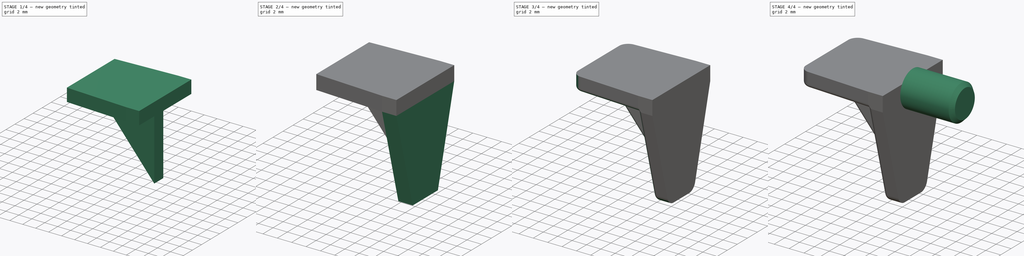
[diagram: build sequence overview — one tinted view per stage of 4, left to right]
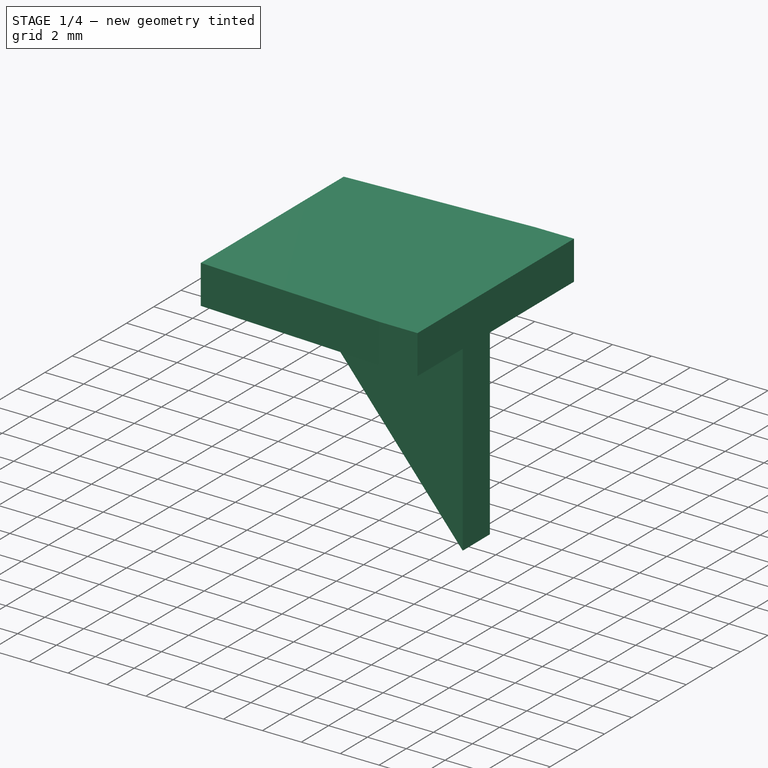
[diagram: stage 1 of 4 — iso view after this stage's code; geometry added in this stage tinted green]
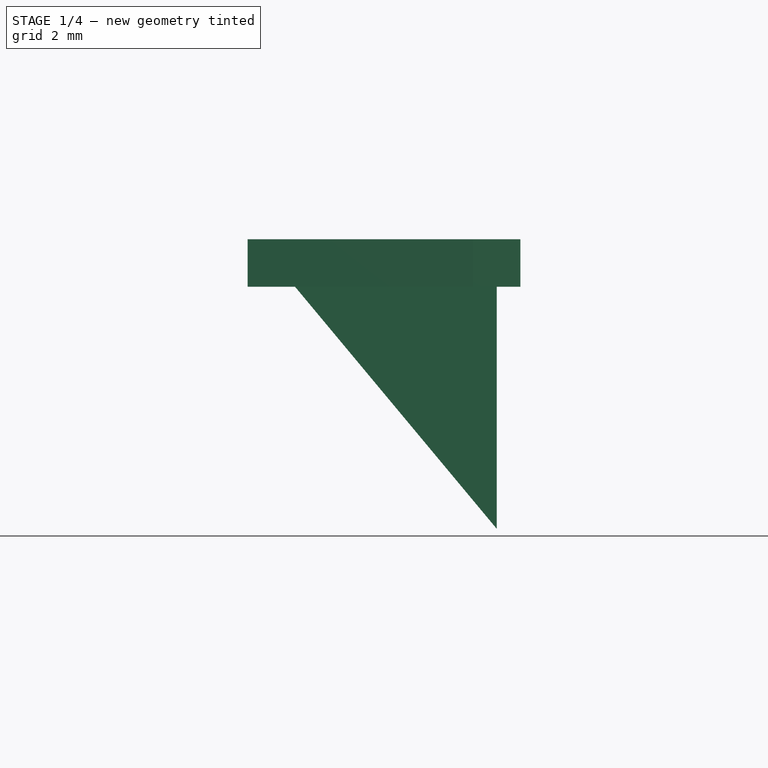
[diagram: stage 1 of 4 — front view after this stage's code; geometry added in this stage tinted green]
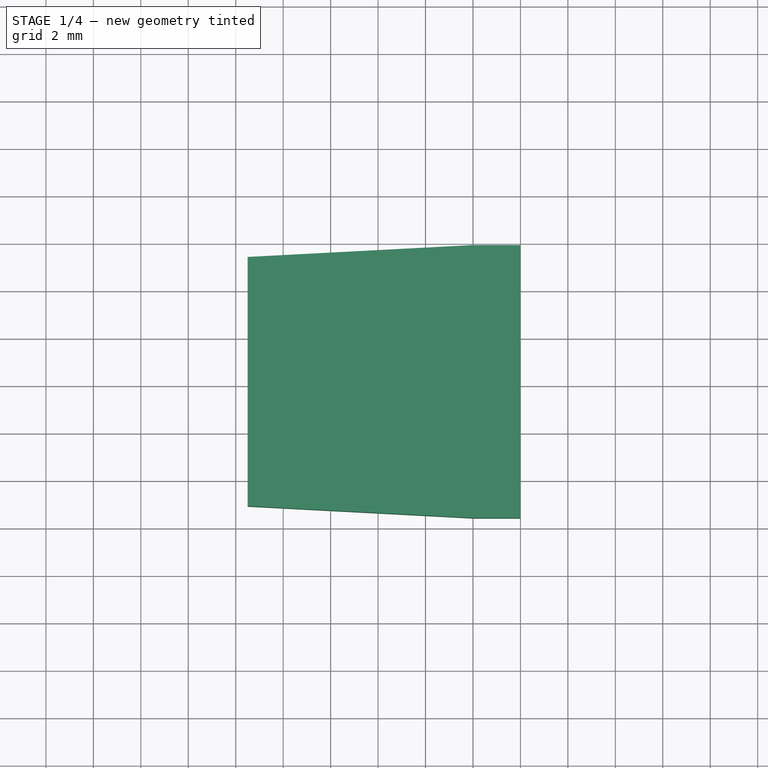
[diagram: stage 1 of 4 — top view after this stage's code; geometry added in this stage tinted green]
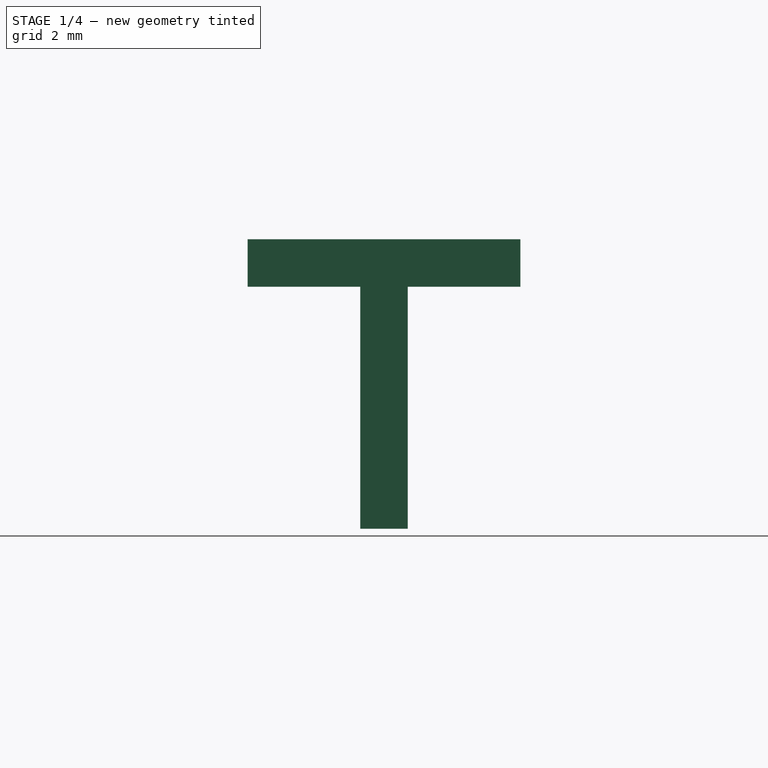
[diagram: stage 1 of 4 — right view after this stage's code; geometry added in this stage tinted green]
FCSTD DOCUMENT  (FreeCAD 0.16R6712 (Git))
Label: ClosetPin
License: All rights reserved
LicenseURL: http://en.wikipedia.org/wiki/All_rights_reserved
objects: Sketcher::SketchObject×4, PartDesign::Pad×4, PartDesign::Fillet×3, Part::MultiFuse×1, PartDesign::Chamfer×1
note: 17 computed .brp shape members not serialized (recipe doc carries the construction recipe); baked Part::Feature solids carry a one-line shape summary decoded from their .brp

FEATURE [Sketcher::SketchObject] Sketch
  sketch-geometry (6):
    g0: LineSegment StartX=0 StartY=5.75 StartZ=0 EndX=-2 EndY=5.75 EndZ=0
    g1: LineSegment StartX=-2 StartY=5.75 StartZ=0 EndX=-11.5 EndY=5.25 EndZ=0
    g2: LineSegment StartX=-11.5 StartY=5.25 StartZ=0 EndX=-11.5 EndY=-5.25 EndZ=0
    g3: LineSegment StartX=-11.5 StartY=-5.25 StartZ=0 EndX=-2 EndY=-5.75 EndZ=0
    g4: LineSegment StartX=-2 StartY=-5.75 StartZ=0 EndX=0 EndY=-5.75 EndZ=0
    g5: LineSegment StartX=0 StartY=-5.75 StartZ=0 EndX=0 EndY=5.75 EndZ=0
  constraints (18):
    c: PointOnObject(g0,g-2)
    c: Horizontal(g0)
    c: Coincident(g0,g1)
    c: Coincident(g1,g2)
    c: Vertical(g2)
    c: Coincident(g2,g3)
    c: Coincident(g3,g4)
    c: PointOnObject(g4,g-2)
    c: Horizontal(g4)
    c: Coincident(g4,g5)
    c: Coincident(g0,g5)
    c: Symmetric(g4,g0,g-1)
    c: Symmetric(g2,g1,g-1)
    c: DistanceX(g4,g4) = 2
    c: DistanceY(g5,g5) = 11.5
    c: DistanceX(g1,g0) = 11.5
    c: DistanceY(g2,g2) = 10.5
    c: Equal(g0,g4)
FEATURE [PartDesign::Pad] Pad
  Length = 2
  Length2 = 100
  Reversed = true
  Sketch = -> Sketch
  Type = 0
FEATURE [Sketcher::SketchObject] Sketch002
  Placement = pos=(0,0,0) rot=(-1,0,0;4.71239rad)
  sketch-geometry (5):
    g0: LineSegment StartX=-10.3333 StartY=-1 StartZ=0 EndX=-1 EndY=-12.2 EndZ=0
    g1: LineSegment StartX=-1 StartY=-12.2 StartZ=0 EndX=-1 EndY=-1 EndZ=0
    g2: LineSegment StartX=-1 StartY=-1 StartZ=0 EndX=-10.3333 EndY=-1 EndZ=0
    g3: GeomPoint [constr] X=-9.5 Y=-2 Z=0
    g4: GeomPoint [constr] X=-2 Y=-11 Z=0
  constraints (13):
    c: Coincident(g0,g1)
    c: Vertical(g1)
    c: Coincident(g1,g2)
    c: Coincident(g2,g0)
    c: Horizontal(g2)
    c: PointOnObject(g3,g0)
    c: PointOnObject(g4,g0)
    c: DistanceX(g4,g0) = 1
    c: DistanceY(g3,g0) = 1
    c: DistanceY(g4,g-1) = 11
    c: DistanceX(g4,g-1) = 2
    c: DistanceX(g3,g-1) = 9.5
    c: DistanceY(g3,g-1) = 2
FEATURE [PartDesign::Pad] Pad002
  Length = 2
  Length2 = 100
  Midplane = true
  Placement = pos=(0,0,0) rot=(-1,0,0;4.71239rad)
  Sketch = -> Sketch002
  Type = 0
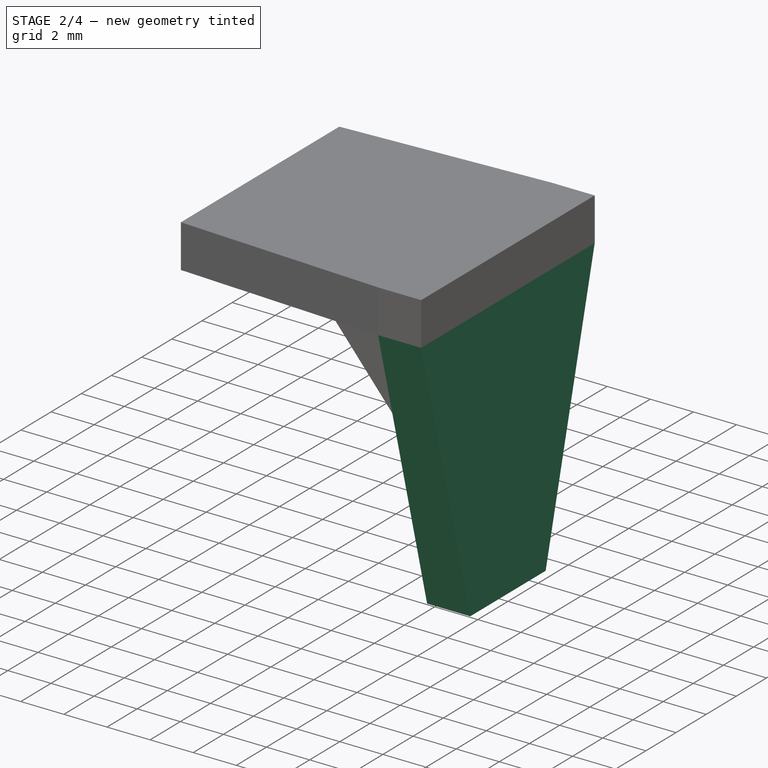
[diagram: stage 2 of 4 — iso view after this stage's code; geometry added in this stage tinted green]
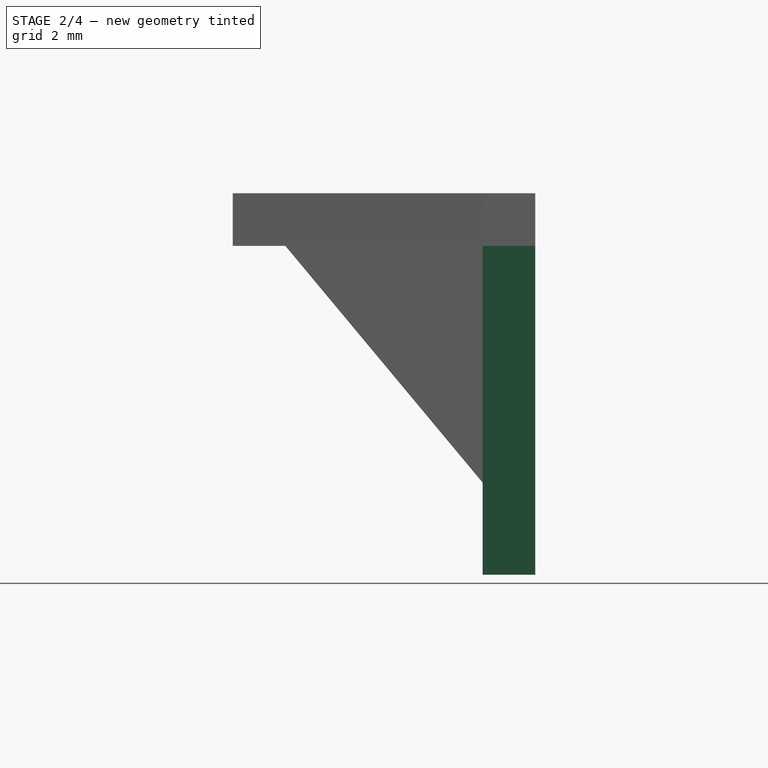
[diagram: stage 2 of 4 — front view after this stage's code; geometry added in this stage tinted green]
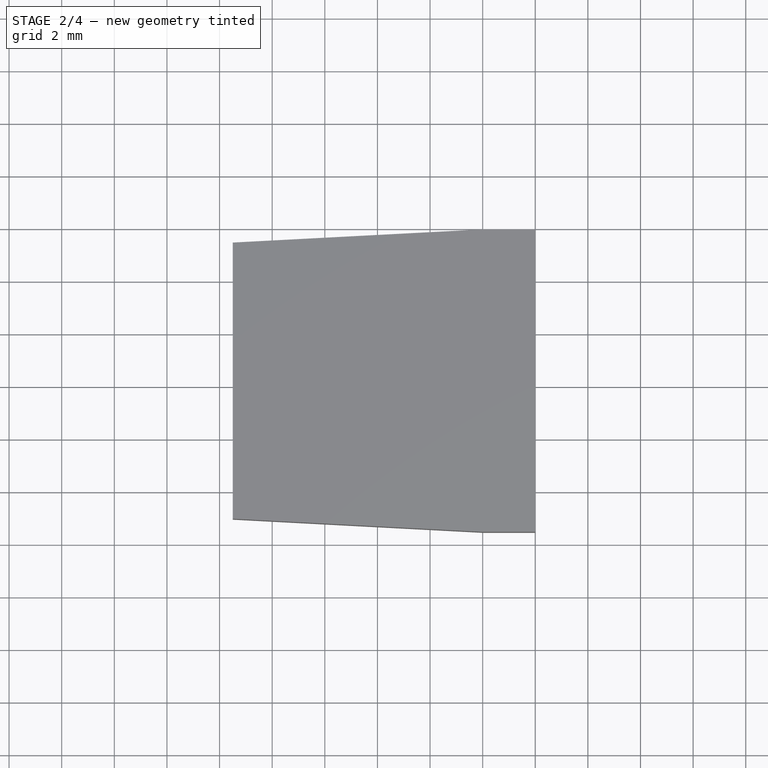
[diagram: stage 2 of 4 — top view after this stage's code; geometry added in this stage tinted green]
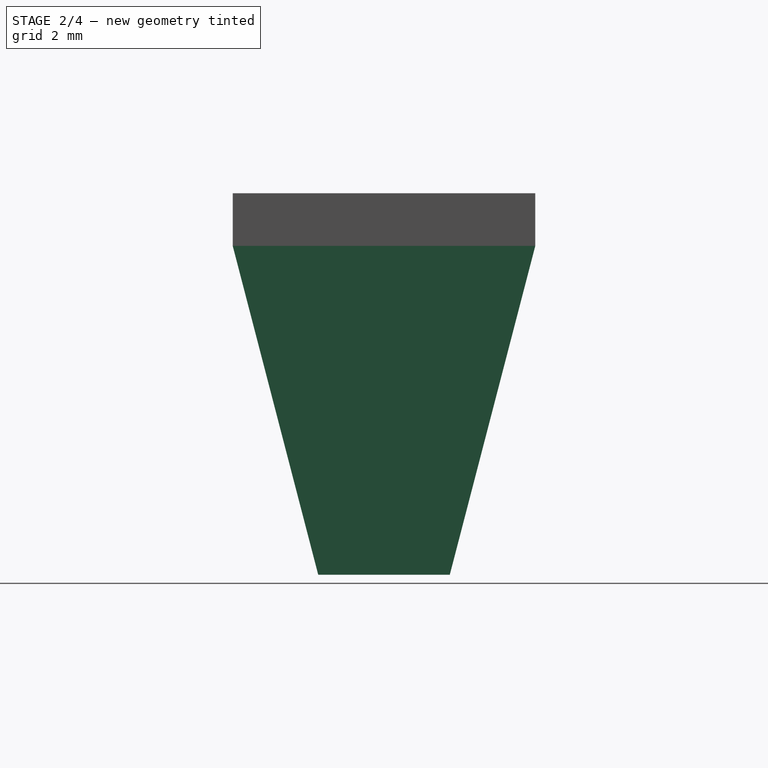
[diagram: stage 2 of 4 — right view after this stage's code; geometry added in this stage tinted green]
FEATURE [Sketcher::SketchObject] Sketch001
  ExternalGeometry = -> [Pad]
  Placement = pos=(0,0,0) rot=(0.57735,0.57735,0.57735;2.0944rad)
  Support = -> Pad [Face6]
  sketch-geometry (6):
    g0: LineSegment StartX=-5.75 StartY=0 StartZ=0 EndX=-5.75 EndY=-2 EndZ=0
    g1: LineSegment StartX=-5.75 StartY=-2 StartZ=0 EndX=-2.5 EndY=-14.5 EndZ=0
    g2: LineSegment StartX=-2.5 StartY=-14.5 StartZ=0 EndX=2.5 EndY=-14.5 EndZ=0
    g3: LineSegment StartX=2.5 StartY=-14.5 StartZ=0 EndX=5.75 EndY=-2 EndZ=0
    g4: LineSegment StartX=5.75 StartY=-2 StartZ=0 EndX=5.75 EndY=0 EndZ=0
    g5: LineSegment StartX=5.75 StartY=0 StartZ=0 EndX=-5.75 EndY=0 EndZ=0
  constraints (16):
    c: Coincident(g-3,g0)
    c: Vertical(g0)
    c: Coincident(g0,g1)
    c: Coincident(g1,g2)
    c: Horizontal(g2)
    c: Coincident(g2,g3)
    c: Coincident(g3,g4)
    c: Coincident(g4,g-3)
    c: Vertical(g4)
    c: Coincident(g4,g5)
    c: Coincident(g0,g5)
    c: Coincident(g0,g-4)
    c: Coincident(g3,g-4)
    c: DistanceX(g2,g2) = 5
    c: Symmetric(g1,g2,g-2)
    c: DistanceY(g1,g0) = 14.5
FEATURE [PartDesign::Pad] Pad001
  Length = 2
  Length2 = 100
  Reversed = true
  Sketch = -> Sketch001
  Type = 0
FEATURE [Part::MultiFuse] Fusion
  Shapes = -> [Pad001,Pad002]
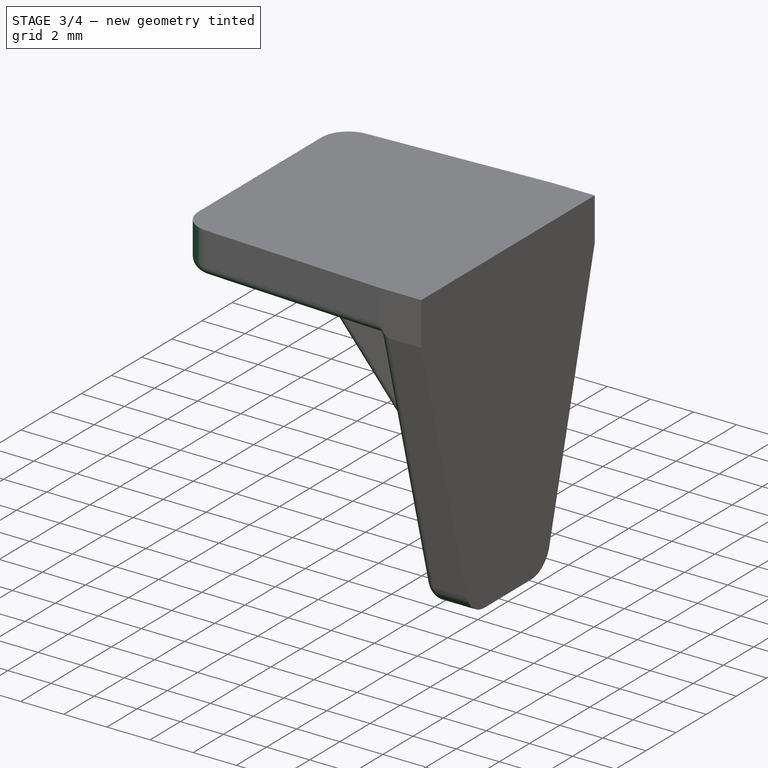
[diagram: stage 3 of 4 — iso view after this stage's code; geometry added in this stage tinted green]
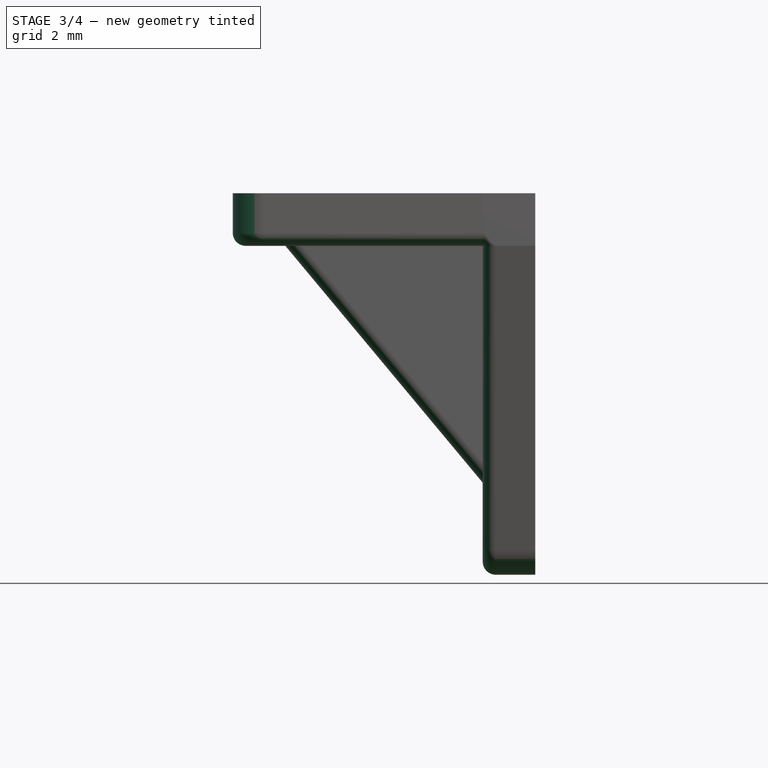
[diagram: stage 3 of 4 — front view after this stage's code; geometry added in this stage tinted green]
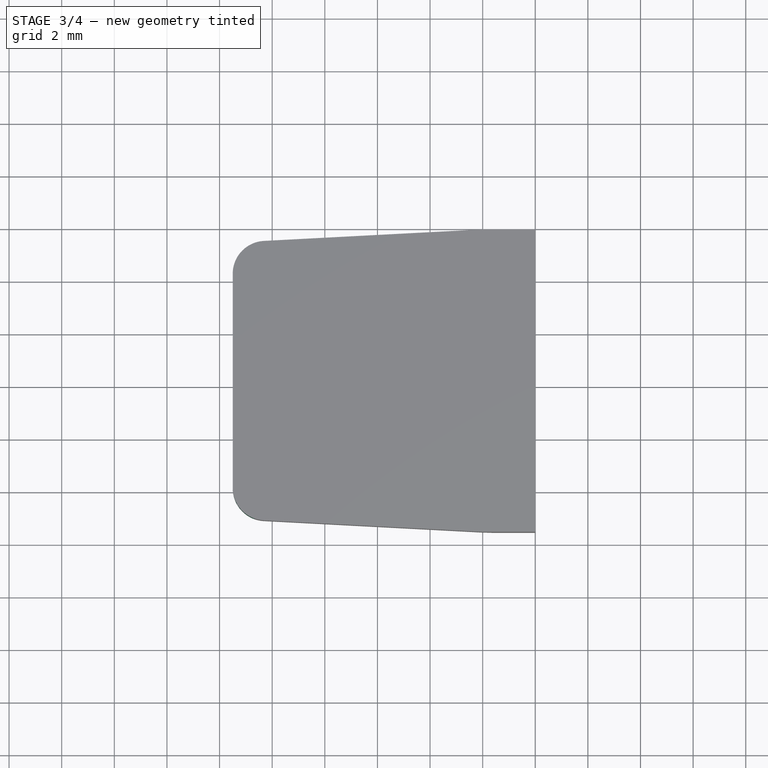
[diagram: stage 3 of 4 — top view after this stage's code; geometry added in this stage tinted green]
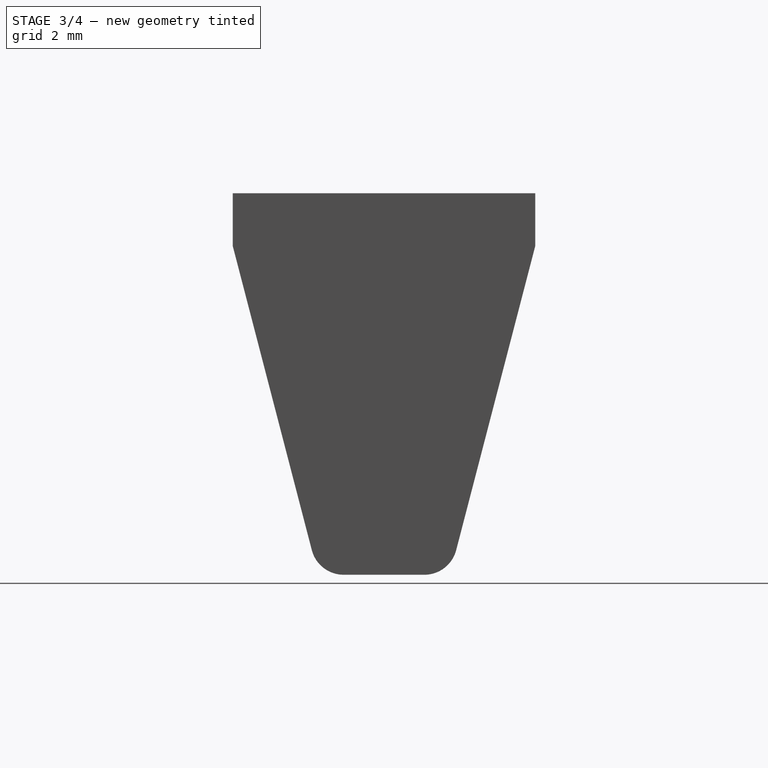
[diagram: stage 3 of 4 — right view after this stage's code; geometry added in this stage tinted green]
FEATURE [PartDesign::Fillet] Fillet
  Base = -> Fusion [Edge1,Edge2,Edge32,Edge36]
  Radius = 1.25
FEATURE [PartDesign::Fillet] Fillet001
  Base = -> Fillet [Edge34,Edge35]
  Radius = 0.5
FEATURE [PartDesign::Fillet] Fillet002
  Base = -> Fillet001 [Edge9,Edge22]
  Radius = 0.5
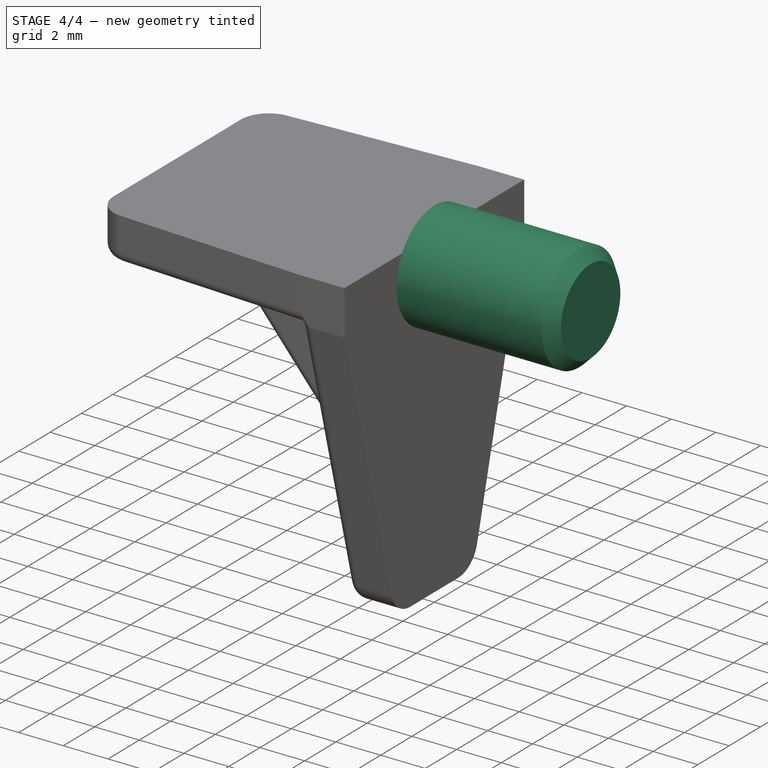
[diagram: stage 4 of 4 — iso view after this stage's code; geometry added in this stage tinted green]
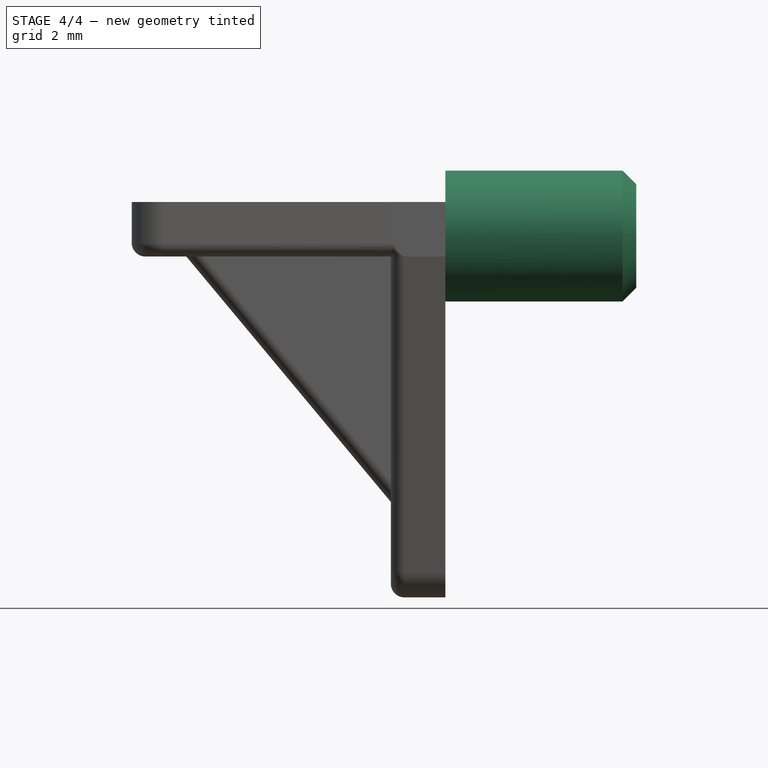
[diagram: stage 4 of 4 — front view after this stage's code; geometry added in this stage tinted green]
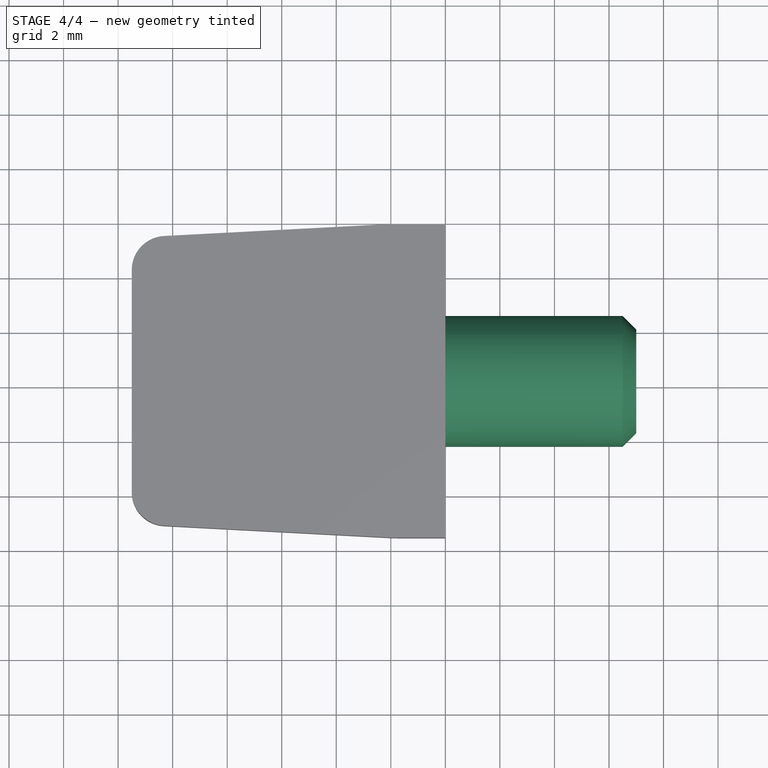
[diagram: stage 4 of 4 — top view after this stage's code; geometry added in this stage tinted green]
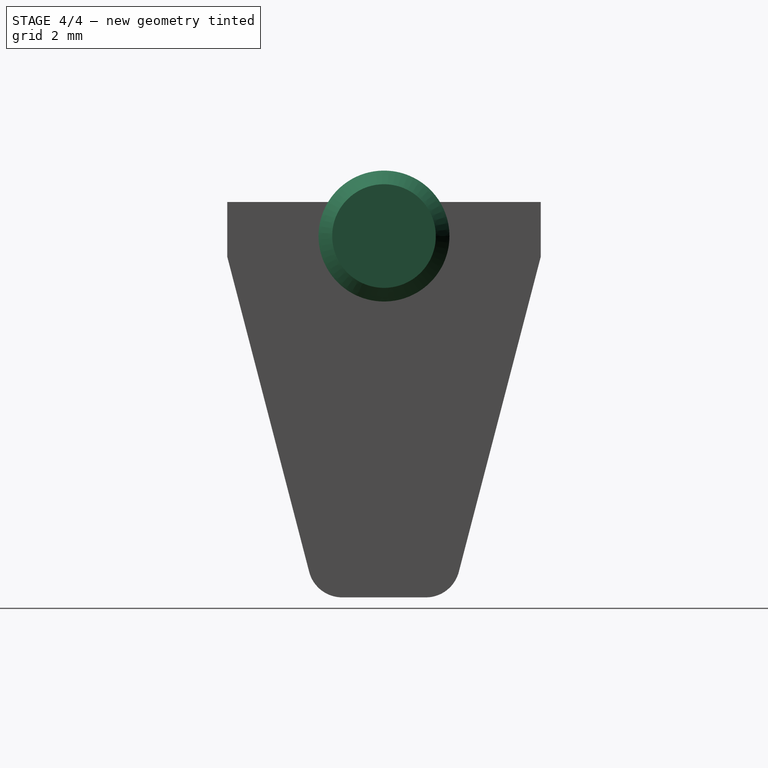
[diagram: stage 4 of 4 — right view after this stage's code; geometry added in this stage tinted green]
FEATURE [Sketcher::SketchObject] Sketch003
  Placement = pos=(0,0,0) rot=(0.57735,0.57735,0.57735;2.0944rad)
  Support = -> Fillet002 [Face35]
  sketch-geometry (1):
    g0: Circle CenterX=0 CenterY=-1.25 CenterZ=0 NormalX=0 NormalY=0 NormalZ=1 Radius=2.4
  constraints (3):
    c: PointOnObject(g0,g-2)
    c: Radius(g0) = 2.4
    c: DistanceY(g0,g-1) = 1.25
FEATURE [PartDesign::Pad] Pad003
  Length = 7
  Length2 = 100
  Sketch = -> Sketch003
  Type = 0
FEATURE [PartDesign::Chamfer] Chamfer
  Base = -> Pad003 [Edge1]
  Size = 0.5
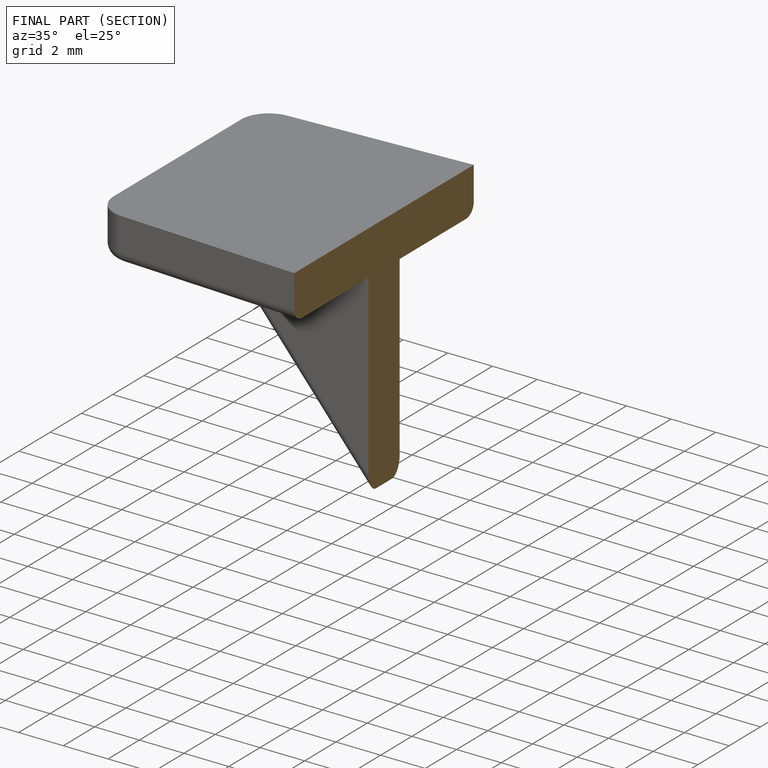
[diagram: finished part — half-section view (interior)]
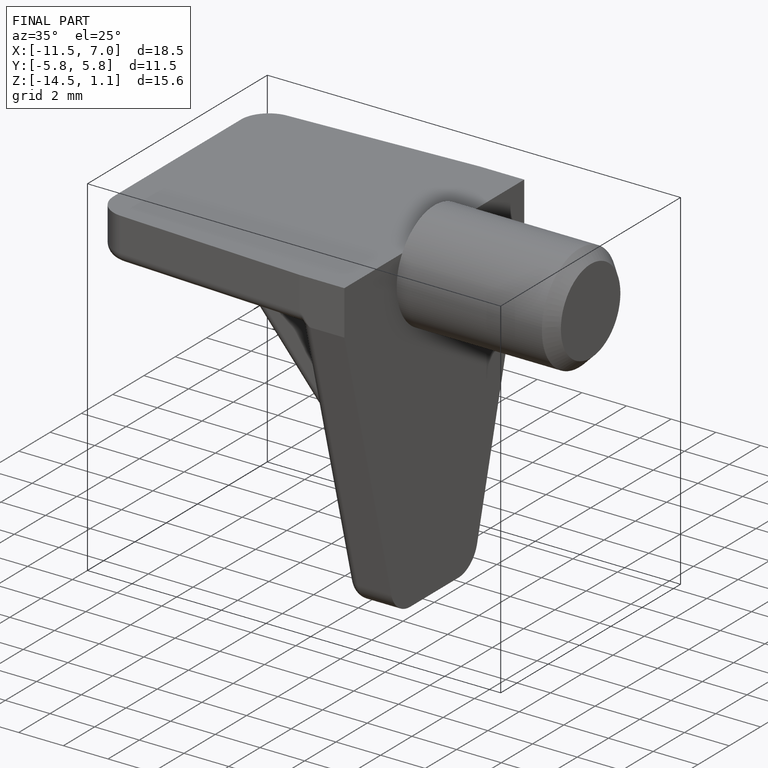
[diagram: finished part — iso view with bounding-box wireframe]
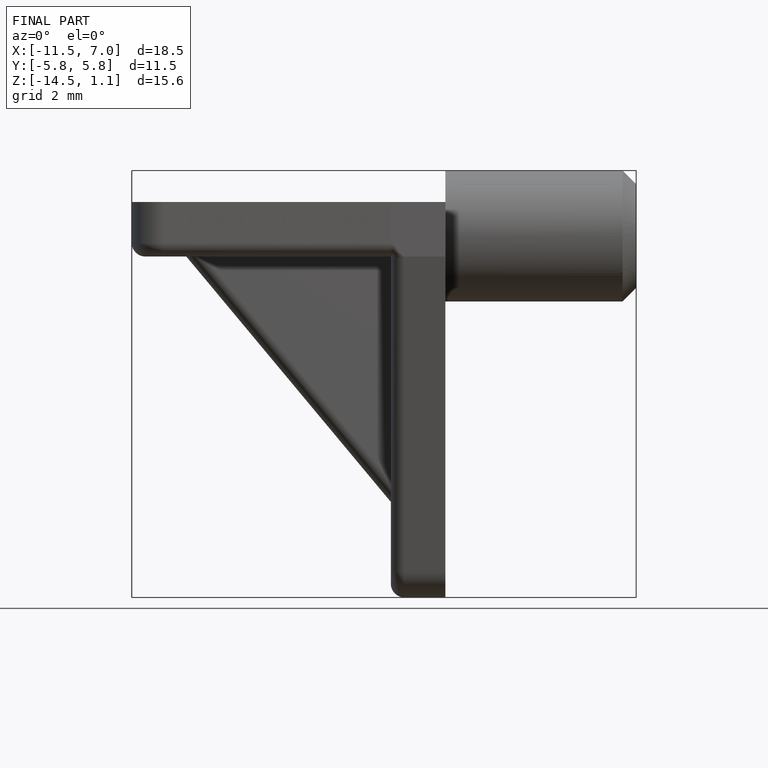
[diagram: finished part — front view with bounding-box wireframe]
